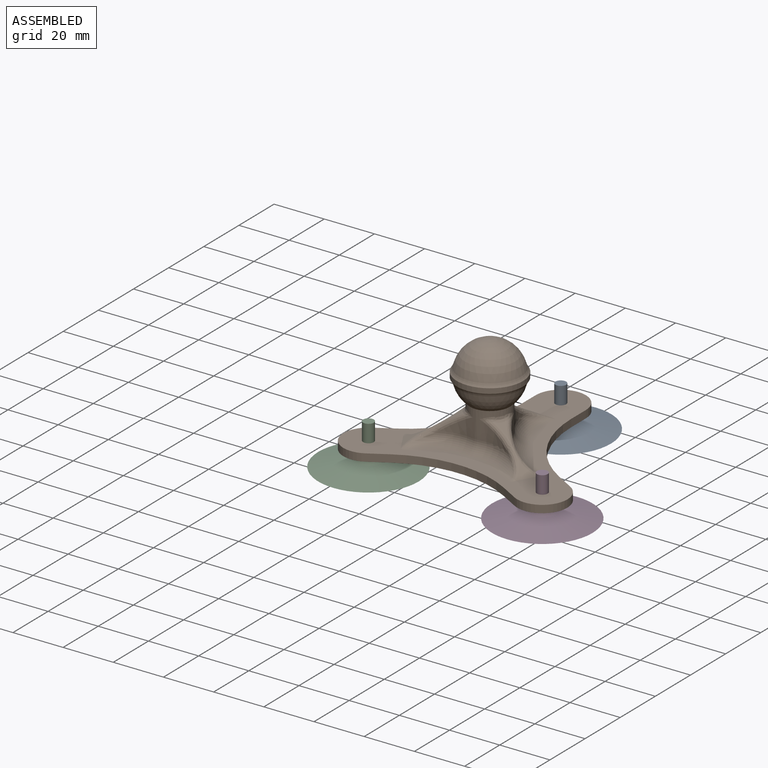
[diagram: assembled view]
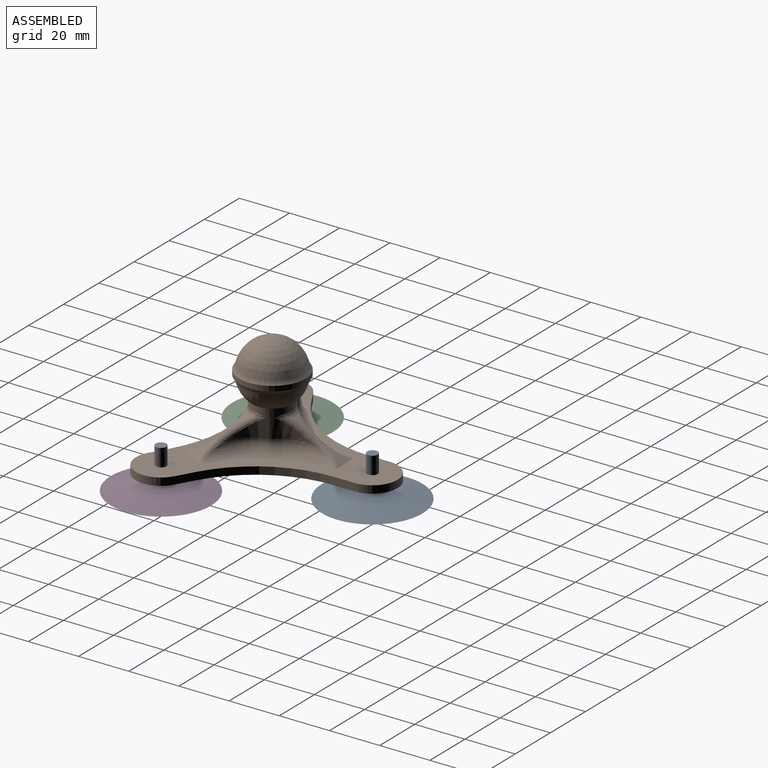
[diagram: assembled view, second angle]
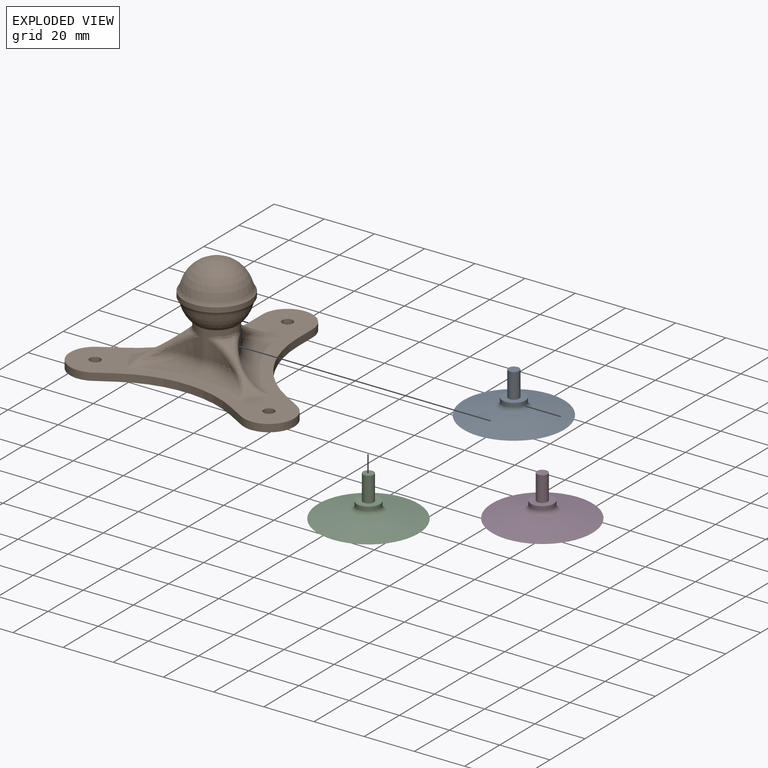
[diagram: exploded view]
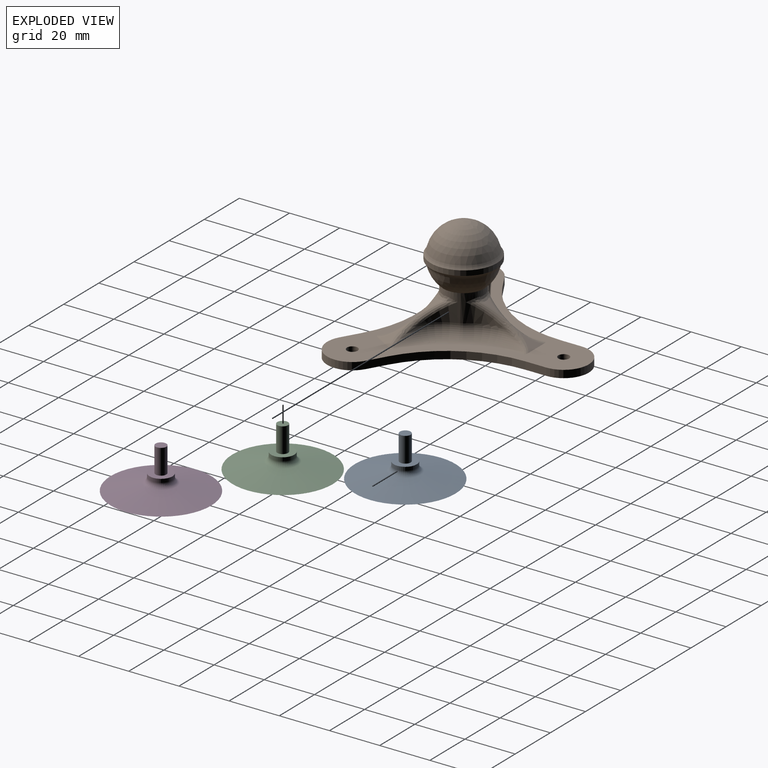
[diagram: exploded view, second angle]
ASSEMBLY  parts=4 mates=3
PART A: 7 faces, bbox 40x40x16.4 mm
  f0: plane 9.17x9.17mm, normal (0,0,1), area 51.5mm2, adj f1,f6
  f1: cylinder r=2.15mm len=10mm, axis (0,0,-1), area 135.1mm2, adj f0,f2
  f2: plane 4.3x4.3mm, normal (0,0,1), area 14.5mm2, adj f1
  f3: cone r=20mm half-angle=86.9deg, axis (0,0,-1), area 1258.5mm2, adj f4
  f4: cone r=6.23mm half-angle=77.7deg, axis (0,0,-1), area 1161.6mm2, adj f3,f5
  f5: torus R=6.58mm, axis (0,0,-1), area 90.4mm2, adj f4,f6
  f6: cylinder r=4.58mm len=9.17mm, axis (0,0,-1), area 42mm2, adj f0,f5
PART B: 77 faces, bbox 89.5x41.2x80.2 mm
  f0: plane 8.22x7.84mm, normal (0.44,-0.86,-0.26), area 25mm2, adj f9,f73,f74
  f1: plane 9.05x6.88mm, normal (0,-0.86,0.51), area 25mm2, adj f9,f63,f65
  f2: plane 8.22x7.84mm, normal (-0.44,-0.86,-0.26), area 25mm2, adj f9,f48,f52
  f3: plane 5.79x4.5mm, normal (0.44,-0.86,-0.26), area 10.5mm2, adj f66,f69,f70
  f4: plane 5.79x4.5mm, normal (-0.44,-0.86,-0.26), area 10.5mm2, adj f49,f54,f56
  f5: cylinder r=8mm len=16mm, axis (0,1,0), area 199.5mm2, adj f23,f27,f28,f29,f30,f31,f32,f35
  f6: plane 8.25x3mm, normal (1,0,0), area 24.7mm2, adj f8,f9,f10,f20
  f7: plane 8.25x3mm, normal (-1,0,0), area 24.7mm2, adj f8,f9,f10,f21
  f8: cylinder r=10mm len=20mm, axis (0,1,0), area 94.2mm2, adj f6,f7,f9,f10
  f9: plane 89.49x80.2mm, normal (0,-1,0), area 1784.4mm2, adj f0,f1,f2,f6,f7,f8,f11,f12
  f10: plane 89.28x80mm, normal (0,1,0), area 2981mm2, adj f6,f7,f8,f11,f12,f13,f14,f15
  f11: plane 7.14x4.12mm, normal (-0.5,0,0.87), area 24.7mm2, adj f9,f10,f13,f21
  f12: plane 7.14x4.12mm, normal (0.5,0,-0.87), area 24.7mm2, adj f9,f10,f13,f22
  f13: cylinder r=10mm len=18.66mm, axis (0,1,0), area 94.2mm2, adj f9,f10,f11,f12
  f14: plane 7.14x4.12mm, normal (-0.5,0,-0.87), area 24.7mm2, adj f9,f10,f16,f22
  f15: plane 7.14x4.12mm, normal (0.5,0,0.87), area 24.7mm2, adj f9,f10,f16,f20
  f16: cylinder r=10mm len=18.66mm, axis (0,1,0), area 94.2mm2, adj f9,f10,f14,f15
  f17: cylinder r=2.15mm len=4.3mm, axis (0,-1,0), area 40.5mm2, adj f9,f10
  f18: cylinder r=2.15mm len=4.3mm, axis (0,1,0), area 40.5mm2, adj f9,f10
  f19: cylinder r=2.15mm len=4.3mm, axis (0,1,0), area 40.5mm2, adj f9,f10
  f20: cylinder r=45mm len=38.97mm, axis (0,1,0), area 141.4mm2, adj f6,f9,f10,f15
  f21: cylinder r=45mm len=38.97mm, axis (0,-1,0), area 141.4mm2, adj f7,f9,f10,f11
  f22: cylinder r=45mm len=45mm, axis (0,-1,0), area 141.4mm2, adj f9,f10,f12,f14
  f23: sphere r=12.5mm, area 517.5mm2, adj f5,f76
  f24: sphere r=12.5mm, area 744.9mm2, adj f75
  f25: cylinder r=13.16mm len=26.32mm, axis (0,1,0), area 165.4mm2, adj f75,f76
  f26: plane 5.53x4.01mm, normal (0,-0.86,0.51), area 10.5mm2, adj f58,f59,f62
  f27: cylinder r=20mm len=9.77mm, axis (0,1,0), area 48.1mm2, adj f5,f41,f69
  f28: cylinder r=20mm len=12.31mm, axis (0,1,0), area 48.1mm2, adj f5,f34,f70
  f29: cylinder r=20mm len=12.31mm, axis (0,1,0), area 48.1mm2, adj f5,f36,f54
  f30: cylinder r=20mm len=9.77mm, axis (0,1,0), area 48.1mm2, adj f5,f46,f56
  f31: cylinder r=20mm len=11.56mm, axis (0,1,0), area 48.1mm2, adj f5,f39,f59
  f32: cylinder r=20mm len=11.56mm, axis (0,1,0), area 48.1mm2, adj f5,f44,f62
  f33: cylinder r=5mm len=11.42mm, axis (-0.87,0,0.5), area 37.5mm2, adj f9,f34,f74
  f34: torus R=15mm, axis (0,-1,0), area 98.9mm2, adj f9,f28,f33,f35,f72
  f35: torus R=13mm, axis (0,-1,0), area 26.5mm2, adj f5,f9,f34,f36
  f36: torus R=15mm, axis (0,-1,0), area 98.9mm2, adj f9,f29,f35,f37,f51
  f37: cylinder r=5mm len=11.42mm, axis (-0.87,0,-0.5), area 37.5mm2, adj f9,f36,f48
  f38: cylinder r=5mm len=10.32mm, axis (0,0,-1), area 37.5mm2, adj f9,f39,f63
  f39: torus R=15mm, axis (0,-1,0), area 98.9mm2, adj f9,f31,f38,f40,f61
  f40: torus R=13mm, axis (0,-1,0), area 26.5mm2, adj f5,f9,f39,f41
  f41: torus R=15mm, axis (0,-1,0), area 98.9mm2, adj f9,f27,f40,f42,f71
  f42: cylinder r=5mm len=11.42mm, axis (0.87,0,-0.5), area 37.5mm2, adj f9,f41,f73
  f43: cylinder r=5mm len=10.32mm, axis (0,0,1), area 37.5mm2, adj f9,f44,f65
  f44: torus R=15mm, axis (0,-1,0), area 98.9mm2, adj f9,f32,f43,f45,f64
  f45: torus R=13mm, axis (0,-1,0), area 26.5mm2, adj f5,f9,f44,f46
  f46: torus R=15mm, axis (0,-1,0), area 98.9mm2, adj f9,f30,f45,f47,f55
  f47: cylinder r=5mm len=11.42mm, axis (0.87,0,0.5), area 37.5mm2, adj f9,f46,f52
  f48: bspline ~11.18x7.93mm, area 25.6mm2, adj f2,f9,f37,f51,f52
  f49: bspline ~3.63x2.61mm, area 7.5mm2, adj f4,f5,f50,f53
  f50: bspline ~5.98x3.41mm, area 3.8mm2, adj f5,f49,f54
  f51: bspline ~5.27x3.74mm, area 3.7mm2, adj f36,f48,f54,f55
  f52: bspline ~12.41x6.18mm, area 25.6mm2, adj f2,f9,f47,f48,f55
  f53: bspline ~5.41x1.78mm, area 3.8mm2, adj f5,f49,f56
  f54: bspline ~14.1x9.33mm, area 34.8mm2, adj f4,f29,f50,f51,f56
  f55: bspline ~4.24x4.17mm, area 3.7mm2, adj f46,f51,f52,f56
  f56: bspline ~11.95x9.33mm, area 34.8mm2, adj f4,f30,f53,f54,f55
  f57: bspline ~5.59x4.05mm, area 3.8mm2, adj f5,f58,f59
  f58: bspline ~4.01x1.84mm, area 7.5mm2, adj f5,f26,f57,f60
  f59: bspline ~12.72x9.33mm, area 34.8mm2, adj f26,f31,f57,f61,f62
  f60: bspline ~5.59x4.05mm, area 3.8mm2, adj f5,f58,f62
  f61: bspline ~4.98x3.76mm, area 3.7mm2, adj f39,f59,f63,f64
  f62: bspline ~12.72x9.33mm, area 34.8mm2, adj f26,f32,f59,f60,f64
  f63: bspline ~11.35x6.95mm, area 25.6mm2, adj f1,f9,f38,f61,f65
  f64: bspline ~4.98x3.76mm, area 3.7mm2, adj f44,f61,f62,f65
  f65: bspline ~11.35x6.95mm, area 25.6mm2, adj f1,f9,f43,f63,f64
  f66: bspline ~3.63x2.61mm, area 7.5mm2, adj f3,f5,f67,f68
  f67: bspline ~6.31x2.1mm, area 3.8mm2, adj f5,f66,f69
  f68: bspline ~5.98x3.41mm, area 3.8mm2, adj f5,f66,f70
  f69: bspline ~11.95x9.33mm, area 34.8mm2, adj f3,f27,f67,f70,f71
  f70: bspline ~14.1x9.33mm, area 34.8mm2, adj f3,f28,f68,f69,f72
  f71: bspline ~4.24x4.17mm, area 3.7mm2, adj f41,f69,f72,f73
  f72: bspline ~5.27x3.74mm, area 3.7mm2, adj f34,f70,f71,f74
  f73: bspline ~12.41x6.18mm, area 25.6mm2, adj f0,f9,f42,f71,f74
  f74: bspline ~11.18x7.93mm, area 25.6mm2, adj f0,f9,f33,f72,f73
  f75: torus R=16.98mm, axis (0,-1,0), area 180.3mm2, adj f24,f25
  f76: torus R=16.98mm, axis (0,1,0), area 180.3mm2, adj f23,f25
PART C: same geometry as A
PART D: same geometry as A
PLACE A t=(-157.89,54.57,-119.81)mm
PLACE B rot(axis=(-1,0,0),90deg) t=(-158.1,14.57,-108.7)mm
PLACE C t=(-192.53,-5.43,-119.81)mm
PLACE D t=(-123.25,-5.43,-119.81)mm
MATE fastened B.f8 <-> A.f1  axis (0,0,-1) through (-157.89,54.57,-110.2)mm
MATE fastened B.f16 <-> D.f1  axis (0,0,-1) through (-123.25,-5.43,-110.2)mm
MATE fastened B.f13 <-> C.f1  axis (0,0,-1) through (-192.53,-5.43,-110.2)mm
